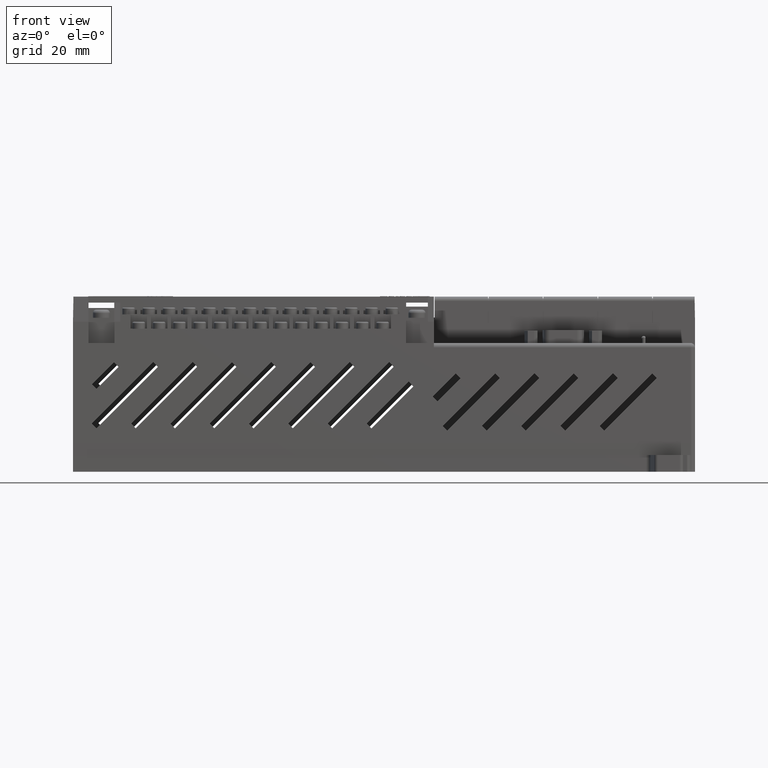
[diagram: clean part render]
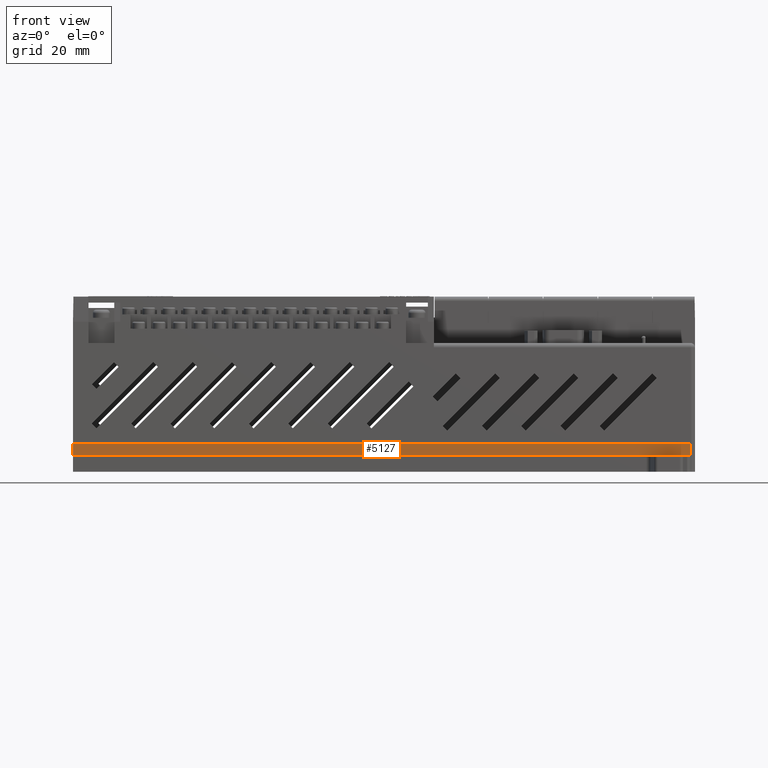
[diagram: same view with one face highlighted and labeled with its STEP entity id]
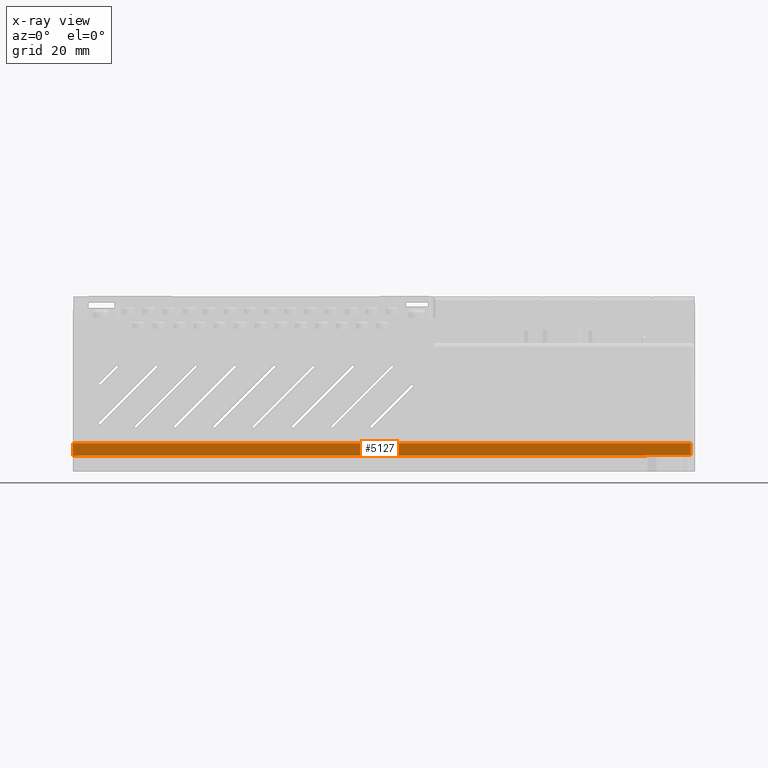
[diagram: x-ray of the same camera — body ghosted, the highlighted face saturated]
A machine part, front view. The second image highlights one B-rep face of the part: STEP entity #5127.
The next image is the same camera in x-ray: the body ghosted, the highlighted face saturated — about 0% of this face is hidden behind the body in this view.
In plain terms, the highlighted planar face has unit normal (-0, 0.9999, 0.0162).
Its self-contained STEP definition (entity closure, byte-faithful):
#875 = EDGE_CURVE ( 'NONE', #3820, #876, #9968, .T. ) ;
#876 = VERTEX_POINT ( 'NONE', #9962 ) ;
#3733 = VERTEX_POINT ( 'NONE', #17642 ) ;
#3816 = EDGE_CURVE ( 'NONE', #3820, #3733, #17921, .T. ) ;
#3820 = VERTEX_POINT ( 'NONE', #17916 ) ;
#4457 = EDGE_CURVE ( 'NONE', #876, #4459, #19691, .T. ) ;
#4459 = VERTEX_POINT ( 'NONE', #19686 ) ;
#5000 = VERTEX_POINT ( 'NONE', #20541 ) ;
#5001 = ORIENTED_EDGE ( 'NONE', *, *, #5003, .F. ) ;
#5003 = EDGE_CURVE ( 'NONE', #5004, #5000, #20540, .T. ) ;
#5004 = VERTEX_POINT ( 'NONE', #20536 ) ;
#5005 = VERTEX_POINT ( 'NONE', #20535 ) ;
#5100 = ORIENTED_EDGE ( 'NONE', *, *, #5101, .T. ) ;
#5101 = EDGE_CURVE ( 'NONE', #5004, #5005, #20644, .T. ) ;
#5104 = ORIENTED_EDGE ( 'NONE', *, *, #5108, .F. ) ;
#5108 = EDGE_CURVE ( 'NONE', #4459, #5005, #20714, .T. ) ;
#5110 = ORIENTED_EDGE ( 'NONE', *, *, #4457, .F. ) ;
#5111 = ORIENTED_EDGE ( 'NONE', *, *, #875, .F. ) ;
#5112 = ORIENTED_EDGE ( 'NONE', *, *, #3816, .T. ) ;
#5127 = ADVANCED_FACE ( 'NONE', ( #20756 ), #20783, .F. ) ;
#5128 = EDGE_LOOP ( 'NONE', ( #5133, #5001, #5100, #5104, #5110, #5111, #5112 ) ) ;
#5133 = ORIENTED_EDGE ( 'NONE', *, *, #5135, .T. ) ;
#5135 = EDGE_CURVE ( 'NONE', #3733, #5000, #20818, .T. ) ;
#9962 = CARTESIAN_POINT ( 'NONE',  ( -3.262450984251964200, -0.002932366666755512000, 3.679774826308386300 ) ) ;
#9964 = DIRECTION ( 'NONE',  ( -3.491025764377903300E-015, -0.01618964165578722400, 0.9998689391630571900 ) ) ;
#9965 = VECTOR ( 'NONE', #9964, 39.37007874015748100 ) ;
#9967 = CARTESIAN_POINT ( 'NONE',  ( -3.262450984251967300, -0.01735118136903477200, 4.570277857004134200 ) ) ;
#9968 = LINE ( 'NONE', #9967, #9965 ) ;
#17642 = CARTESIAN_POINT ( 'NONE',  ( 5.115105288799454400, 0.0000000000000000000, 3.498672464028631100 ) ) ;
#17916 = CARTESIAN_POINT ( 'NONE',  ( -3.262450984251964200, 0.0000000000000000000, 3.498672464028602200 ) ) ;
#17917 = DIRECTION ( 'NONE',  ( 1.000000000000000000, -0.0000000000000000000, 3.491483361109382100E-015 ) ) ;
#17918 = VECTOR ( 'NONE', #17917, 39.37007874015748100 ) ;
#17920 = CARTESIAN_POINT ( 'NONE',  ( -3.262450984251964200, 0.0000000000000000000, 3.498672464028602200 ) ) ;
#17921 = LINE ( 'NONE', #17920, #17918 ) ;
#19686 = CARTESIAN_POINT ( 'NONE',  ( 5.762549015748034800, -0.002932366666755512000, 3.679774826308417800 ) ) ;
#19687 = DIRECTION ( 'NONE',  ( 1.000000000000000000, -0.0000000000000000000, 3.491483361109382100E-015 ) ) ;
#19689 = VECTOR ( 'NONE', #19687, 39.37007874015748100 ) ;
#19690 = CARTESIAN_POINT ( 'NONE',  ( -3.262450984251964200, -0.002932366666755512000, 3.679774826308386300 ) ) ;
#19691 = LINE ( 'NONE', #19690, #19689 ) ;
#20535 = CARTESIAN_POINT ( 'NONE',  ( 5.764640227187283200, -0.002898718224438472400, 3.677696705430924400 ) ) ;
#20536 = CARTESIAN_POINT ( 'NONE',  ( 5.764787878875194100, -0.0001421237888598498600, 3.507450000000015100 ) ) ;
#20537 = DIRECTION ( 'NONE',  ( -1.000000000000000000, 0.0000000000000000000, -3.491483361109382100E-015 ) ) ;
#20538 = VECTOR ( 'NONE', #20537, 39.37007874015748100 ) ;
#20539 = CARTESIAN_POINT ( 'NONE',  ( -3.262450984251964200, -0.0001421237888598498600, 3.507449999999983500 ) ) ;
#20540 = LINE ( 'NONE', #20539, #20538 ) ;
#20541 = CARTESIAN_POINT ( 'NONE',  ( 5.119317802827470000, -0.0001421237888598502400, 3.507450000000012800 ) ) ;
#20644 = B_SPLINE_CURVE_WITH_KNOTS ( 'NONE', 3,
 ( #20689, #20688, #20687, #20686, #20685, #20684, #20683 ),
 .UNSPECIFIED., .F., .F.,
 ( 4, 3, 4 ),
 ( 0.0000000000000000000, 0.003175000000000197600, 0.004324834760286282300 ),
 .UNSPECIFIED. ) ;
#20683 = CARTESIAN_POINT ( 'NONE',  ( 5.764640227187283200, -0.002898718224438472400, 3.677696705430924400 ) ) ;
#20684 = CARTESIAN_POINT ( 'NONE',  ( 5.764653305389691300, -0.002654421561173658000, 3.662608993748785100 ) ) ;
#20685 = CARTESIAN_POINT ( 'NONE',  ( 5.764666385456606300, -0.002410124897935007200, 3.647521282068262300 ) ) ;
#20686 = CARTESIAN_POINT ( 'NONE',  ( 5.764679467402341800, -0.002165828234722727200, 3.632433570389368000 ) ) ;
#20687 = CARTESIAN_POINT ( 'NONE',  ( 5.764715590138533400, -0.001491260085899314200, 3.590772380247080300 ) ) ;
#20688 = CARTESIAN_POINT ( 'NONE',  ( 5.764751727198443200, -0.0008166919372769043400, 3.549111190117206300 ) ) ;
#20689 = CARTESIAN_POINT ( 'NONE',  ( 5.764787878875194100, -0.0001421237888598498600, 3.507450000000015100 ) ) ;
#20710 = CARTESIAN_POINT ( 'NONE',  ( 5.764640227187283200, -0.002898718224438472400, 3.677696705430924400 ) ) ;
#20711 = CARTESIAN_POINT ( 'NONE',  ( 5.763943367247605000, -0.002921149551463022900, 3.679082059574823000 ) ) ;
#20712 = CARTESIAN_POINT ( 'NONE',  ( 5.763246236616885700, -0.002932366666755848100, 3.679774826308440000 ) ) ;
#20713 = CARTESIAN_POINT ( 'NONE',  ( 5.762549015748034800, -0.002932366666755512000, 3.679774826308417800 ) ) ;
#20714 =( BOUNDED_CURVE ( )  B_SPLINE_CURVE ( 3, ( #20713, #20712, #20711, #20710 ),
 .UNSPECIFIED., .F., .T. ) 
 B_SPLINE_CURVE_WITH_KNOTS ( ( 4, 4 ),
 ( 1.389682711286859000E-014, 0.03217803638933982400 ),
 .UNSPECIFIED. ) 
 CURVE ( )  GEOMETRIC_REPRESENTATION_ITEM ( )  RATIONAL_B_SPLINE_CURVE ( ( 1.000000000000000000, 0.9999137163591248500, 0.9999137163591248500, 1.000000000000000000 ) ) 
 REPRESENTATION_ITEM ( '' )  );
#20756 = FACE_OUTER_BOUND ( 'NONE', #5128, .T. ) ;
#20779 = DIRECTION ( 'NONE',  ( 3.491025764377903300E-015, 0.01618964165578722400, -0.9998689391630571900 ) ) ;
#20780 = DIRECTION ( 'NONE',  ( -5.652586446350442100E-017, 0.9998689391630571900, 0.01618964165578722400 ) ) ;
#20781 = CARTESIAN_POINT ( 'NONE',  ( -3.262450984251967300, -0.01735118136903477200, 4.570277857004134200 ) ) ;
#20782 = AXIS2_PLACEMENT_3D ( 'NONE', #20781, #20780, #20779 ) ;
#20783 = PLANE ( 'NONE',  #20782 ) ;
#20814 = CARTESIAN_POINT ( 'NONE',  ( 5.119317802827470000, -0.0001421237888598502400, 3.507450000000012800 ) ) ;
#20815 = CARTESIAN_POINT ( 'NONE',  ( 5.117915495793051900, -4.739256302365693500E-005, 3.501599418974422000 ) ) ;
#20816 = CARTESIAN_POINT ( 'NONE',  ( 5.116510791920735100, 1.849627445145572200E-017, 3.498672464028649700 ) ) ;
#20817 = CARTESIAN_POINT ( 'NONE',  ( 5.115105288799454400, 0.0000000000000000000, 3.498672464028631100 ) ) ;
#20818 =( BOUNDED_CURVE ( )  B_SPLINE_CURVE ( 3, ( #20817, #20816, #20815, #20814 ),
 .UNSPECIFIED., .F., .T. ) 
 B_SPLINE_CURVE_WITH_KNOTS ( ( 4, 4 ),
 ( 3.141592653589792200, 3.209044013488239400 ),
 .UNSPECIFIED. ) 
 CURVE ( )  GEOMETRIC_REPRESENTATION_ITEM ( )  RATIONAL_B_SPLINE_CURVE ( ( 1.000000000000000000, 0.9996208954395040500, 0.9996208954395040500, 1.000000000000000000 ) ) 
 REPRESENTATION_ITEM ( '' )  );